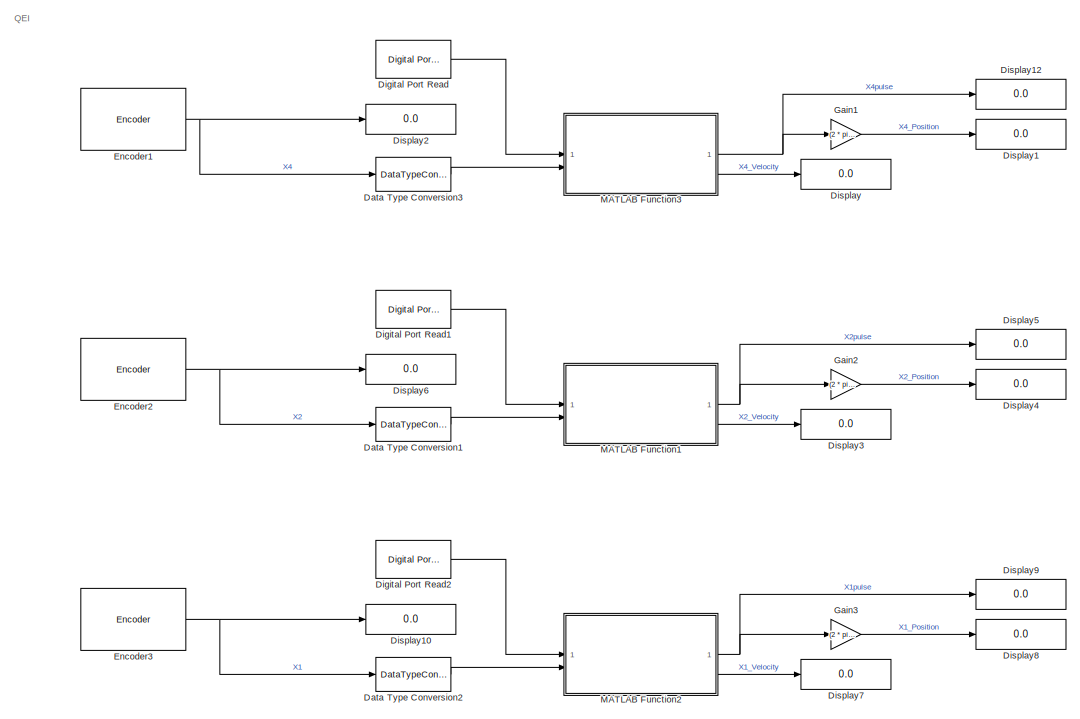
[diagram: root canvas - part 1/2, left side, full height]
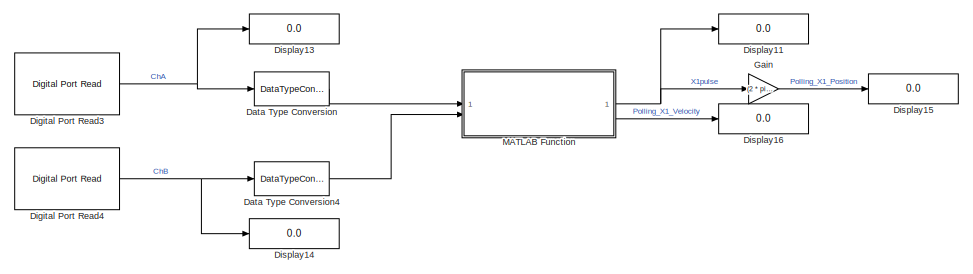
[diagram: root canvas - part 2/2, top right region]
MODEL slx_15b1e7bc5efa
KIND model
CONFIG AbsTol = auto
CONFIG EnableMultiTasking = on
CONFIG FixedStep = 0.001
CONFIG MaxStep = auto
CONFIG MinStep = auto
CONFIG RelTol = 1e-3
CONFIG SampleTimeConstraint = Unconstrained
CONFIG SolverName = FixedStepAuto
CONFIG StartTime = 0.0
CONFIG StopTime = inf
BLOCK [DataTypeConversion] Data Type Conversion
  OutDataTypeStr = double
  RndMeth = Floor
  SaturateOnIntegerOverflow = off
BLOCK [DataTypeConversion] Data Type Conversion1
  Commented = on
  OutDataTypeStr = double
  RndMeth = Floor
  SaturateOnIntegerOverflow = off
BLOCK [DataTypeConversion] Data Type Conversion2
  Commented = on
  OutDataTypeStr = double
  RndMeth = Floor
  SaturateOnIntegerOverflow = off
BLOCK [DataTypeConversion] Data Type Conversion3
  Commented = on
  OutDataTypeStr = double
  RndMeth = Floor
  SaturateOnIntegerOverflow = off
BLOCK [DataTypeConversion] Data Type Conversion4
  OutDataTypeStr = double
  RndMeth = Floor
  SaturateOnIntegerOverflow = off
BLOCK [Reference] Digital Port Read  REF=stm32f4xxblockslib/Digital Port Read
  Commented = on
  LibrarySourceBlock = stm32g4xxblockslib/Digital Port Read
  SourceBlock = stm32f4xxblockslib/Digital Port Read
  SourceType = stm32cube.blocks.DigitalPortRead
BLOCK [Reference] Digital Port Read1  REF=stm32f4xxblockslib/Digital Port Read
  Commented = on
  LibrarySourceBlock = stm32g4xxblockslib/Digital Port Read
  SourceBlock = stm32f4xxblockslib/Digital Port Read
  SourceType = stm32cube.blocks.DigitalPortRead
BLOCK [Reference] Digital Port Read2  REF=stm32f4xxblockslib/Digital Port Read
  Commented = on
  LibrarySourceBlock = stm32g4xxblockslib/Digital Port Read
  SourceBlock = stm32f4xxblockslib/Digital Port Read
  SourceType = stm32cube.blocks.DigitalPortRead
BLOCK [Reference] Digital Port Read3  REF=stm32f4xxblockslib/Digital Port Read
  LibrarySourceBlock = stm32g4xxblockslib/Digital Port Read
  SourceBlock = stm32f4xxblockslib/Digital Port Read
  SourceType = stm32cube.blocks.DigitalPortRead
BLOCK [Reference] Digital Port Read4  REF=stm32f4xxblockslib/Digital Port Read
  LibrarySourceBlock = stm32g4xxblockslib/Digital Port Read
  SourceBlock = stm32f4xxblockslib/Digital Port Read
  SourceType = stm32cube.blocks.DigitalPortRead
BLOCK [Display] Display
  Commented = on
  Decimation = 1
BLOCK [Display] Display1
  Commented = on
  Decimation = 1
  Format = decimal (Stored Integer)
BLOCK [Display] Display10
  Commented = on
  Decimation = 1
BLOCK [Display] Display11
  Decimation = 1
BLOCK [Display] Display12
  Commented = on
  Decimation = 1
BLOCK [Display] Display13
  Decimation = 1
BLOCK [Display] Display14
  Decimation = 1
BLOCK [Display] Display15
  Decimation = 1
BLOCK [Display] Display16
  Decimation = 1
BLOCK [Display] Display2
  Commented = on
  Decimation = 1
BLOCK [Display] Display3
  Commented = on
  Decimation = 1
BLOCK [Display] Display4
  Commented = on
  Decimation = 1
  Format = decimal (Stored Integer)
BLOCK [Display] Display5
  Commented = on
  Decimation = 1
BLOCK [Display] Display6
  Commented = on
  Decimation = 1
BLOCK [Display] Display7
  Commented = on
  Decimation = 1
BLOCK [Display] Display8
  Commented = on
  Decimation = 1
  Format = decimal (Stored Integer)
BLOCK [Display] Display9
  Commented = on
  Decimation = 1
BLOCK [Reference] Encoder1  REF=stm32g4xxblockslib/Encoder
  Commented = on
  SourceBlock = stm32g4xxblockslib/Encoder
  SourceType = stm32cube.blocks.EncoderBlockForG4
BLOCK [Reference] Encoder2  REF=stm32g4xxblockslib/Encoder
  Commented = on
  SourceBlock = stm32g4xxblockslib/Encoder
  SourceType = stm32cube.blocks.EncoderBlockForG4
BLOCK [Reference] Encoder3  REF=stm32g4xxblockslib/Encoder
  Commented = on
  SourceBlock = stm32g4xxblockslib/Encoder
  SourceType = stm32cube.blocks.EncoderBlockForG4
BLOCK [Gain] Gain
  Gain = (2 * pi)/24
BLOCK [Gain] Gain1
  Commented = on
  Gain = (2 * pi)/24
BLOCK [Gain] Gain2
  Commented = on
  Gain = (2 * pi)/24
BLOCK [Gain] Gain3
  Commented = on
  Gain = (2 * pi)/24
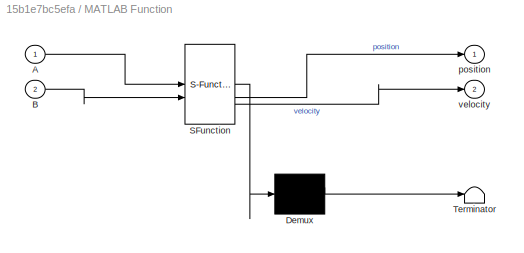
BLOCK [SubSystem] MATLAB Function
  ErrorFcn = Stateflow.Translate.translate
  PermitHierarchicalResolution = ExplicitOnly
  SFBlockType = MATLAB Function
  TreatAsAtomicUnit = on
BLOCK [Demux] MATLAB Function/ Demux 
  Outputs = 1
BLOCK [S-Function] MATLAB Function/ SFunction 
  EnableBusSupport = on
  FunctionName = sf_sfun
  PortCounts = [2 3]
  SFcnIsStateOwnerBlock = off
  SFunctionDeploymentMode = off
  Tag = Stateflow S-Function 4
BLOCK [Terminator] MATLAB Function/ Terminator 
BLOCK [Inport] MATLAB Function/A
BLOCK [Inport] MATLAB Function/B
  Port = 2
BLOCK [Outport] MATLAB Function/position
BLOCK [Outport] MATLAB Function/velocity
  Port = 2
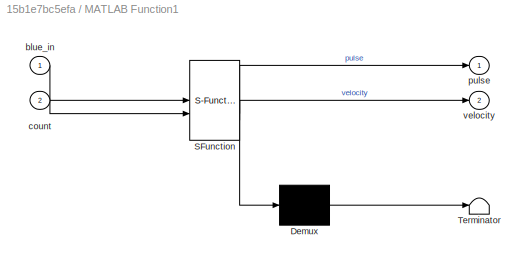
BLOCK [SubSystem] MATLAB Function1
  Commented = on
  ErrorFcn = Stateflow.Translate.translate
  PermitHierarchicalResolution = ExplicitOnly
  SFBlockType = MATLAB Function
  TreatAsAtomicUnit = on
BLOCK [Demux] MATLAB Function1/ Demux 
  Outputs = 1
BLOCK [S-Function] MATLAB Function1/ SFunction 
  EnableBusSupport = on
  FunctionName = sf_sfun
  PortCounts = [2 3]
  SFcnIsStateOwnerBlock = off
  SFunctionDeploymentMode = off
  Tag = Stateflow S-Function 1
BLOCK [Terminator] MATLAB Function1/ Terminator 
BLOCK [Inport] MATLAB Function1/blue_in
BLOCK [Inport] MATLAB Function1/count
  Port = 2
BLOCK [Outport] MATLAB Function1/pulse
BLOCK [Outport] MATLAB Function1/velocity
  Port = 2
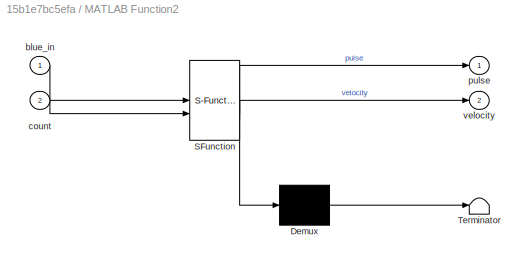
BLOCK [SubSystem] MATLAB Function2
  Commented = on
  ErrorFcn = Stateflow.Translate.translate
  PermitHierarchicalResolution = ExplicitOnly
  SFBlockType = MATLAB Function
  TreatAsAtomicUnit = on
BLOCK [Demux] MATLAB Function2/ Demux 
  Outputs = 1
BLOCK [S-Function] MATLAB Function2/ SFunction 
  EnableBusSupport = on
  FunctionName = sf_sfun
  PortCounts = [2 3]
  SFcnIsStateOwnerBlock = off
  SFunctionDeploymentMode = off
  Tag = Stateflow S-Function 3
BLOCK [Terminator] MATLAB Function2/ Terminator 
BLOCK [Inport] MATLAB Function2/blue_in
BLOCK [Inport] MATLAB Function2/count
  Port = 2
BLOCK [Outport] MATLAB Function2/pulse
BLOCK [Outport] MATLAB Function2/velocity
  Port = 2
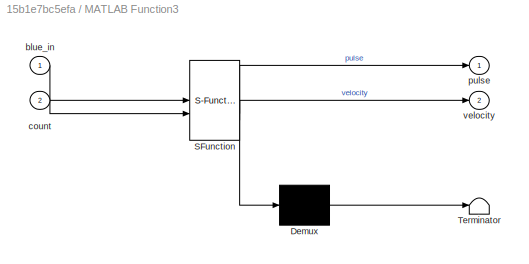
BLOCK [SubSystem] MATLAB Function3
  Commented = on
  ErrorFcn = Stateflow.Translate.translate
  PermitHierarchicalResolution = ExplicitOnly
  SFBlockType = MATLAB Function
  TreatAsAtomicUnit = on
BLOCK [Demux] MATLAB Function3/ Demux 
  Outputs = 1
BLOCK [S-Function] MATLAB Function3/ SFunction 
  EnableBusSupport = on
  FunctionName = sf_sfun
  PortCounts = [2 3]
  SFcnIsStateOwnerBlock = off
  SFunctionDeploymentMode = off
  Tag = Stateflow S-Function 2
BLOCK [Terminator] MATLAB Function3/ Terminator 
BLOCK [Inport] MATLAB Function3/blue_in
BLOCK [Inport] MATLAB Function3/count
  Port = 2
BLOCK [Outport] MATLAB Function3/pulse
BLOCK [Outport] MATLAB Function3/velocity
  Port = 2
ANNOTATION (root): QEI
LINE Data Type Conversion1:1 -> MATLAB Function1:2
LINE Data Type Conversion2:1 -> MATLAB Function2:2
LINE Data Type Conversion3:1 -> MATLAB Function3:2
LINE Data Type Conversion4:1 -> MATLAB Function:2
LINE Data Type Conversion:1 -> MATLAB Function:1
LINE Digital Port Read1:1 -> MATLAB Function1:1
LINE Digital Port Read2:1 -> MATLAB Function2:1
NET Digital Port Read3:1 -> Data Type Conversion:1, Display13:1
NET Digital Port Read4:1 -> Data Type Conversion4:1, Display14:1
LINE Digital Port Read:1 -> MATLAB Function3:1
NET Encoder1:1 -> Data Type Conversion3:1, Display2:1
NET Encoder2:1 -> Data Type Conversion1:1, Display6:1
NET Encoder3:1 -> Data Type Conversion2:1, Display10:1
LINE Gain1:1 -> Display1:1
LINE Gain2:1 -> Display4:1
LINE Gain3:1 -> Display8:1
LINE Gain:1 -> Display15:1
NET MATLAB Function1:1 -> Display5:1, Gain2:1
LINE MATLAB Function1:2 -> Display3:1
NET MATLAB Function2:1 -> Display9:1, Gain3:1
LINE MATLAB Function2:2 -> Display7:1
NET MATLAB Function3:1 -> Display12:1, Gain1:1
LINE MATLAB Function3:2 -> Display:1
NET MATLAB Function:1 -> Display11:1, Gain:1
LINE MATLAB Function:2 -> Display16:1
note: NET lines group one-source signal fan-out (src -> all destinations, sorted); 1:1 wires keep LINE
CHART MATLAB Function1 states=1 transitions=1
  STATE_LABEL 'eML_blk_kernel()'
  STATE_LABEL 'SCRIPT:\nfunction [pulse, velocity] = X2(blue_in, count)\n    %#codegen\n    \n    % ประกาศตัวแปร persistent เพื่อเก็บค่าตัวนับก่อนหน้าและตำแหน่งที่คลายห่อก่อนหน้า\n    persistent previousCount unwrappedPositionPrev;\n    \n    % กำหนดค่าเริ่มต้นให้ตัวแปร persistent เมื่อเรียกใช้งานครั้งแรก\n    if isempty(previousCount)\n        previousCount = count;\n        unwrappedPositionPrev = 0;  % กำหนดตำแหน่งคลาย...<+1185ch>'
CHART MATLAB Function3 states=1 transitions=1
  STATE_LABEL 'eML_blk_kernel()'
  STATE_LABEL 'SCRIPT:\nfunction [pulse, velocity] = X4(blue_in, count)\n    %#codegen\n    \n    % ประกาศตัวแปร persistent เพื่อเก็บค่าตัวนับก่อนหน้าและตำแหน่งที่คลายห่อก่อนหน้า\n    persistent previousCount unwrappedPositionPrev;\n    \n    % กำหนดค่าเริ่มต้นให้ตัวแปร persistent เมื่อเรียกใช้งานครั้งแรก\n    if isempty(previousCount)\n        previousCount = count;\n        unwrappedPositionPrev = 0;  % กำหนดตำแหน่งคลาย...<+1185ch>'
CHART MATLAB Function2 states=1 transitions=1
  STATE_LABEL 'eML_blk_kernel()'
  STATE_LABEL 'SCRIPT:\nfunction [pulse, velocity] = X1(blue_in, count)\n    %#codegen\n    \n    % ประกาศตัวแปร persistent เพื่อเก็บค่าตัวนับก่อนหน้าและตำแหน่งที่คลายห่อก่อนหน้า\n    persistent previousCount unwrappedPositionPrev;\n    \n    % กำหนดค่าเริ่มต้นให้ตัวแปร persistent เมื่อเรียกใช้งานครั้งแรก\n    if isempty(previousCount)\n        previousCount = count;\n        unwrappedPositionPrev = 0;  % กำหนดตำแหน่งคลาย...<+1185ch>'
CHART MATLAB Function states=1 transitions=1
  STATE_LABEL 'eML_blk_kernel()'
  STATE_LABEL 'SCRIPT:\nfunction [position, velocity] = readEncoderX1(A, B)\n    % readEncoderX1 - Read encoder position and velocity using X1 mode with polling\n    % A and B are the input signals from the encoder channels A and B\n    % position returns the current encoder position, counting forward and backward\n    % velocity returns the rotational velocity based on position change over time\n    \n    persistent l...<+1272ch>'
CHART  states=0 transitions=0
CHART  states=0 transitions=0
CHART  states=0 transitions=0
CHART  states=0 transitions=0
